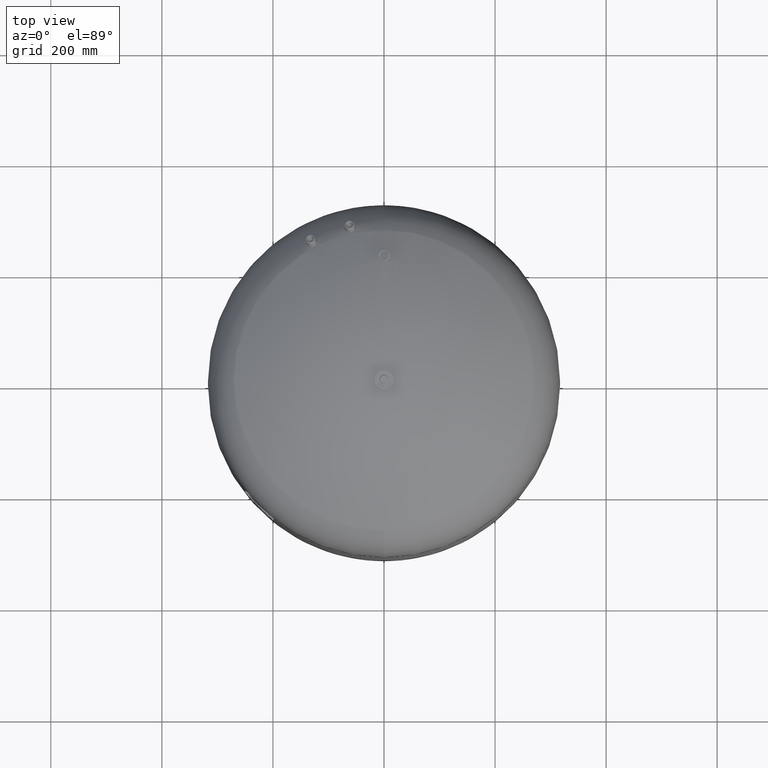
[diagram: clean part render]
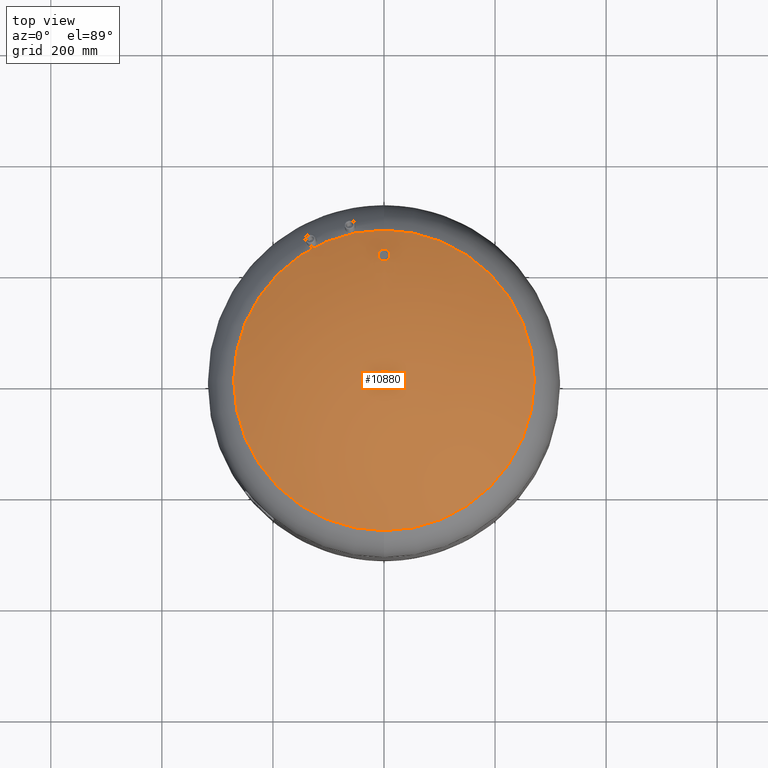
[diagram: same view with one face highlighted and labeled with its STEP entity id]
A machine part, top view. The second image highlights one B-rep face of the part: STEP entity #10880.
In plain terms, the highlighted spherical surface has radius 509 mm.
Its self-contained STEP definition (entity closure, byte-faithful):
#10110=CARTESIAN_POINT('',(-6.240420E-014,235.650000000000120,872.165244117939550));
#10111=VERTEX_POINT('',#10110);
#10127=CARTESIAN_POINT('',(-6.620164E-014,214.350000000000110,882.665547230893140));
#10128=VERTEX_POINT('',#10127);
#10135=CARTESIAN_POINT('',(-6.620164E-014,214.350000000000110,882.665547230893140));
#10136=CARTESIAN_POINT('',(0.665075310141527,214.350000000000110,882.665547230893140));
#10137=CARTESIAN_POINT('',(1.350206991556453,214.413353584532360,882.634674288250490));
#10138=CARTESIAN_POINT('',(2.707130270555042,214.676648463734840,882.506326944258830));
#10139=CARTESIAN_POINT('',(3.378937617180858,214.876523818335500,882.408883785880790));
#10140=CARTESIAN_POINT('',(4.661382011267419,215.399296597398350,882.153890027283640));
#10141=CARTESIAN_POINT('',(5.273228350756988,215.722643525670550,881.996117561115510));
#10142=CARTESIAN_POINT('',(6.400145528194803,216.461006054498910,881.635601390574950));
#10143=CARTESIAN_POINT('',(6.915220226390661,216.876015506415510,881.432857159922610));
#10144=CARTESIAN_POINT('',(7.882411787644009,217.803199265310070,880.979559876568490));
#10145=CARTESIAN_POINT('',(8.355764564403234,218.356660925888240,880.708784242652200));
#10146=CARTESIAN_POINT('',(9.182241075298267,219.555810038705540,880.121497219526080));
#10147=CARTESIAN_POINT('',(9.535457627618920,220.201444520697010,879.805008299407290));
#10148=CARTESIAN_POINT('',(10.099115955069610,221.541829722322630,879.147205930583370));
#10149=CARTESIAN_POINT('',(10.309941098322838,222.237445194945200,878.805465802148890));
#10150=CARTESIAN_POINT('',(10.585412503711682,223.630461165513710,878.120320409818990));
#10151=CARTESIAN_POINT('',(10.649999999999940,224.327870720086280,877.776909933315550));
#10152=CARTESIAN_POINT('',(10.649999999999940,225.673320027525530,877.113685005362870));
#10153=CARTESIAN_POINT('',(10.585186233959652,226.371633240987050,876.769087544930580));
#10154=CARTESIAN_POINT('',(10.309092786519162,227.765890682131210,876.080262495565310));
#10155=CARTESIAN_POINT('',(10.097876677712755,228.461845251053940,875.736030358912220));
#10156=CARTESIAN_POINT('',(9.533483876167788,229.802516962906960,875.072191438973850));
#10157=CARTESIAN_POINT('',(9.179930445894836,230.448092247452000,874.752161931152950));
#10158=CARTESIAN_POINT('',(8.352878926801351,231.646972675924700,874.157288658574320));
#10159=CARTESIAN_POINT('',(7.879287318994294,232.200227453226940,873.882473411625600));
#10160=CARTESIAN_POINT('',(6.912295769910375,233.126402901866330,873.422084984171190));
#10161=CARTESIAN_POINT('',(6.397727695451428,233.540752575368740,873.215957833523130));
#10162=CARTESIAN_POINT('',(5.271776081340166,234.278132956657430,872.848925358594220));
#10163=CARTESIAN_POINT('',(4.660386452013519,234.601157690451630,872.688026713840710));
#10164=CARTESIAN_POINT('',(3.378655177507927,235.123542806104210,872.427735275230020));
#10165=CARTESIAN_POINT('',(2.707097836372054,235.323352477943190,872.328121428751160));
#10166=CARTESIAN_POINT('',(1.350398402592688,235.586614625588960,872.196858617131850));
#10167=CARTESIAN_POINT('',(0.665239955652324,235.650000000000120,872.165244117939660));
#10168=CARTESIAN_POINT('',(-6.240420E-014,235.650000000000120,872.165244117939660));
#10169=B_SPLINE_CURVE_WITH_KNOTS('',3,(#10135,#10136,#10137,#10138,#10139,#10140,#10141,#10142,#10143,#10144,#10145,#10146,#10147,#10148,#10149,#10150,#10151,#10152,#10153,#10154,#10155,#10156,#10157,#10158,#10159,#10160,#10161,#10162,#10163,#10164,#10165,#10166,#10167,#10168),.UNSPECIFIED.,.F.,.U.,(4,2,2,2,2,2,2,2,2,2,2,2,2,2,2,2,4),(33.964187760767828,35.959413691192609,37.954639621617382,39.949865552042155,41.945091482466935,44.193150717350363,46.441209952233798,48.689269187117233,50.937328422000661,53.189370329927243,55.441412237853832,57.693454145780422,59.945496053707004,61.941215920664163,63.936935787621330,65.932655654578497,67.928375521535656),.UNSPECIFIED.);
#10170=EDGE_CURVE('',#10128,#10111,#10169,.T.);
#10679=CARTESIAN_POINT('',(8.065826E-015,270.639024390243830,852.086439681297630));
#10680=VERTEX_POINT('',#10679);
#10696=CARTESIAN_POINT('',(-2.507680E-014,-270.639024390243830,852.086439681297410));
#10697=VERTEX_POINT('',#10696);
#10705=CARTESIAN_POINT('',(-270.639024390243830,2.385415E-014,852.086439681297630));
#10706=VERTEX_POINT('',#10705);
#10707=CARTESIAN_POINT('',(-7.495146E-015,2.385415E-014,852.086439681297520));
#10708=DIRECTION('',(0.0,0.0,-1.0));
#10709=DIRECTION('',(-1.0,0.0,0.0));
#10710=AXIS2_PLACEMENT_3D('',#10707,#10708,#10709);
#10711=CIRCLE('',#10710,270.639024390243830);
#10712=EDGE_CURVE('',#10697,#10706,#10711,.T.);
#10714=CARTESIAN_POINT('',(-7.495146E-015,2.385415E-014,852.086439681297520));
#10715=DIRECTION('',(0.0,0.0,-1.0));
#10716=DIRECTION('',(-1.0,0.0,0.0));
#10717=AXIS2_PLACEMENT_3D('',#10714,#10715,#10716);
#10718=CIRCLE('',#10717,270.639024390243830);
#10719=EDGE_CURVE('',#10706,#10680,#10718,.T.);
#10824=CARTESIAN_POINT('',(-1.005746E-013,1.558363E-013,420.999999999999940));
#10825=DIRECTION('',(0.0,1.0,0.0));
#10826=DIRECTION('',(1.0,0.0,0.0));
#10827=AXIS2_PLACEMENT_3D('',#10824,#10825,#10826);
#10828=SPHERICAL_SURFACE('',#10827,509.000000000000060);
#10829=ORIENTED_EDGE('',*,*,#10719,.F.);
#10830=ORIENTED_EDGE('',*,*,#10712,.F.);
#10831=CARTESIAN_POINT('',(-7.495146E-015,2.385415E-014,852.086439681297520));
#10832=DIRECTION('',(0.0,0.0,-1.0));
#10833=DIRECTION('',(-1.0,0.0,0.0));
#10834=AXIS2_PLACEMENT_3D('',#10831,#10832,#10833);
#10835=CIRCLE('',#10834,270.639024390243830);
#10836=EDGE_CURVE('',#10680,#10697,#10835,.T.);
#10837=ORIENTED_EDGE('',*,*,#10836,.F.);
#10838=EDGE_LOOP('',(#10829,#10830,#10837));
#10839=FACE_OUTER_BOUND('',#10838,.T.);
#10840=CARTESIAN_POINT('',(-6.240420E-014,235.650000000000120,872.165244117939660));
#10841=CARTESIAN_POINT('',(-0.665239955652450,235.650000000000120,872.165244117939660));
#10842=CARTESIAN_POINT('',(-1.350398402592815,235.586614625588960,872.196858617131850));
#10843=CARTESIAN_POINT('',(-2.707097836372179,235.323352477943190,872.328121428751160));
#10844=CARTESIAN_POINT('',(-3.378655177508051,235.123542806104210,872.427735275230020));
#10845=CARTESIAN_POINT('',(-4.660386452013640,234.601157690451630,872.688026713840710));
#10846=CARTESIAN_POINT('',(-5.271776081340287,234.278132956657430,872.848925358594220));
#10847=CARTESIAN_POINT('',(-6.397727695451552,233.540752575368740,873.215957833523130));
#10848=CARTESIAN_POINT('',(-6.912295769910498,233.126402901866330,873.422084984171190));
#10849=CARTESIAN_POINT('',(-7.879287318994418,232.200227453226940,873.882473411625600));
#10850=CARTESIAN_POINT('',(-8.352878926801491,231.646972675924700,874.157288658574320));
#10851=CARTESIAN_POINT('',(-9.179930445894975,230.448092247452000,874.752161931152950));
#10852=CARTESIAN_POINT('',(-9.533483876167917,229.802516962906960,875.072191438973850));
#10853=CARTESIAN_POINT('',(-10.097876677712879,228.461845251053940,875.736030358912220));
#10854=CARTESIAN_POINT('',(-10.309092786519290,227.765890682131210,876.080262495565310));
#10855=CARTESIAN_POINT('',(-10.585186233959780,226.371633240987050,876.769087544930580));
#10856=CARTESIAN_POINT('',(-10.650000000000068,225.673320027525530,877.113685005362870));
#10857=CARTESIAN_POINT('',(-10.650000000000068,224.327870720086280,877.776909933315550));
#10858=CARTESIAN_POINT('',(-10.585412503711810,223.630461165513710,878.120320409818990));
#10859=CARTESIAN_POINT('',(-10.309941098322966,222.237445194945200,878.805465802148890));
#10860=CARTESIAN_POINT('',(-10.099115955069738,221.541829722322630,879.147205930583370));
#10861=CARTESIAN_POINT('',(-9.535457627619049,220.201444520697010,879.805008299407290));
#10862=CARTESIAN_POINT('',(-9.182241075298409,219.555810038705570,880.121497219526080));
#10863=CARTESIAN_POINT('',(-8.355764564403382,218.356660925888260,880.708784242652200));
#10864=CARTESIAN_POINT('',(-7.882411787644143,217.803199265310070,880.979559876568490));
#10865=CARTESIAN_POINT('',(-6.915220226390796,216.876015506415510,881.432857159922610));
#10866=CARTESIAN_POINT('',(-6.400145528194948,216.461006054498940,881.635601390574950));
#10867=CARTESIAN_POINT('',(-5.273228350757158,215.722643525670580,881.996117561115400));
#10868=CARTESIAN_POINT('',(-4.661382011267545,215.399296597398400,882.153890027283520));
#10869=CARTESIAN_POINT('',(-3.378937617180983,214.876523818335500,882.408883785880790));
#10870=CARTESIAN_POINT('',(-2.707130270555168,214.676648463734840,882.506326944258830));
#10871=CARTESIAN_POINT('',(-1.350206991556583,214.413353584532360,882.634674288250490));
#10872=CARTESIAN_POINT('',(-0.665075310141659,214.350000000000110,882.665547230893140));
#10873=CARTESIAN_POINT('',(-6.620164E-014,214.350000000000110,882.665547230893140));
#10874=B_SPLINE_CURVE_WITH_KNOTS('',3,(#10840,#10841,#10842,#10843,#10844,#10845,#10846,#10847,#10848,#10849,#10850,#10851,#10852,#10853,#10854,#10855,#10856,#10857,#10858,#10859,#10860,#10861,#10862,#10863,#10864,#10865,#10866,#10867,#10868,#10869,#10870,#10871,#10872,#10873),.UNSPECIFIED.,.F.,.U.,(4,2,2,2,2,2,2,2,2,2,2,2,2,2,2,2,4),(0.0,1.995719866957163,3.991439733914326,5.987159600871488,7.982879467828651,10.234921375755238,12.486963283681824,14.739005191608410,16.991047099534995,19.239106334418427,21.487165569301858,23.735224804185290,25.983284039068721,27.978509969493498,29.973735899918275,31.968961830343051,33.964187760767828),.UNSPECIFIED.);
#10875=EDGE_CURVE('',#10111,#10128,#10874,.T.);
#10876=ORIENTED_EDGE('',*,*,#10875,.F.);
#10877=ORIENTED_EDGE('',*,*,#10170,.F.);
#10878=EDGE_LOOP('',(#10876,#10877));
#10879=FACE_BOUND('',#10878,.T.);
#10880=ADVANCED_FACE('',(#10839,#10879),#10828,.T.);